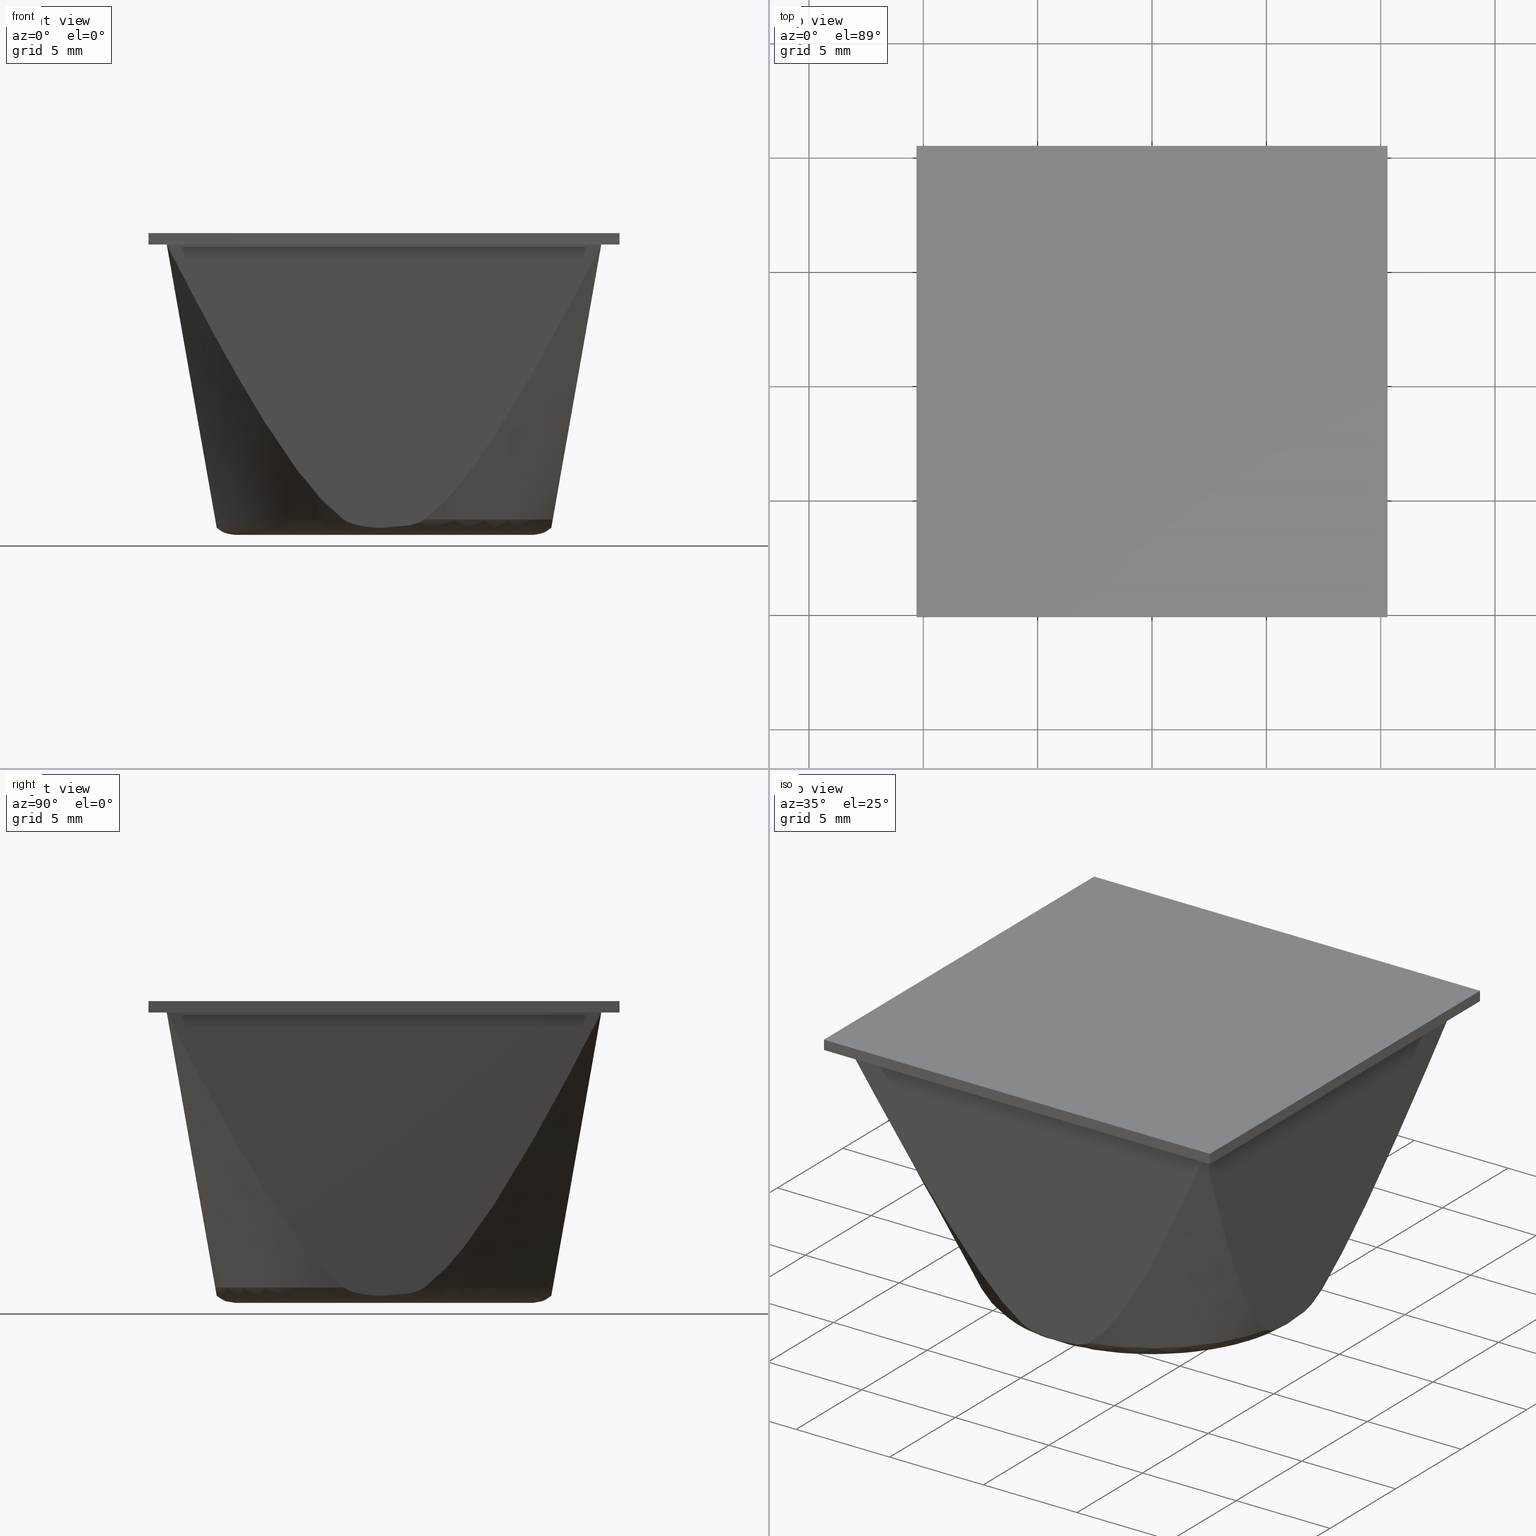
[diagram: canonical four-view strip — front | top / right | iso, engineering-drawing reading convention]
A machine part, canonical four-view strip (front | top / right | iso — engineering-drawing reading convention). The complete STEP part file that produces these views, byte-faithful:
ISO-10303-21;
HEADER;
/****************************************************************
 * Generated by software with PDE/Lib inside                    *
 * PDElib Version 4.4.1-0003, patched  Thursday August 19 11:58 *
 * International Technegroup Inc. (www.iti-oh.com)              *
 ****************************************************************/
FILE_DESCRIPTION((''),'2;1');
FILE_NAME('','2005-12-14T15:43:38',(''),(''),'','CADfix','');
FILE_SCHEMA(('AUTOMOTIVE_DESIGN'));
ENDSEC;
DATA;
#5=APPLICATION_CONTEXT('automotive design');
#6=APPLICATION_PROTOCOL_DEFINITION('Draft International Standard','automotive_design',1998,#5);
#7=PRODUCT_CONTEXT('None',#5,'mechanical');
#8=PRODUCT('rubber foot','','None',(#7));
#9=PRODUCT_RELATED_PRODUCT_CATEGORY('part','description',(#8));
#10=PRODUCT_DEFINITION_FORMATION('None','None',#8);
#11=PRODUCT_DEFINITION_CONTEXT('part definition',#5,'design');
#12=PRODUCT_DEFINITION('None','None',#10,#11);
#18=(NAMED_UNIT(*)PLANE_ANGLE_UNIT()SI_UNIT($,.RADIAN.));
#19=DIMENSIONAL_EXPONENTS(0.0,0.0,0.0,0.0,0.0,0.0,0.0);
#20=PLANE_ANGLE_MEASURE_WITH_UNIT(PLANE_ANGLE_MEASURE(0.017453292500000),#18);
#24=(CONVERSION_BASED_UNIT('DEGREE',#20)NAMED_UNIT(#19)PLANE_ANGLE_UNIT());
#28=(NAMED_UNIT(*)SI_UNIT($,.STERADIAN.)SOLID_ANGLE_UNIT());
#32=(LENGTH_UNIT()NAMED_UNIT(*)SI_UNIT(.MILLI.,.METRE.));
#34=UNCERTAINTY_MEASURE_WITH_UNIT(LENGTH_MEASURE(0.001000000000000),#32,'DISTANCE_ACCURACY_VALUE','');
#36=(GEOMETRIC_REPRESENTATION_CONTEXT(3)GLOBAL_UNCERTAINTY_ASSIGNED_CONTEXT((#34))GLOBAL_UNIT_ASSIGNED_CONTEXT((#24,#28,#32))REPRESENTATION_CONTEXT('None','None'));
#37=AXIS2_PLACEMENT_3D('',#38,#39,#40);
#38=CARTESIAN_POINT('',(0.0,0.0,0.0));
#39=DIRECTION('',(0.0,0.0,1.0));
#40=DIRECTION('',(1.0,0.0,0.0));
#41=ADVANCED_BREP_SHAPE_REPRESENTATION('',(#37,#943),#36);
#42=PRODUCT_DEFINITION_SHAPE('','',#12);
#43=SHAPE_DEFINITION_REPRESENTATION(#42,#41);
#44=CARTESIAN_POINT('',(3.328638617341546,6.848975217575174,0.732652266162198));
#45=CARTESIAN_POINT('',(10.177613834916718,3.520336600233628,0.732652266162198));
#46=CARTESIAN_POINT('',(6.848975217575174,-3.328638617341545,0.732652266162198));
#47=CARTESIAN_POINT('',(3.520336600233628,-10.177613834916718,0.732652266162198));
#48=CARTESIAN_POINT('',(-3.328638617341545,-6.848975217575174,0.732652266162198));
#49=CARTESIAN_POINT('',(-10.177613834916716,-3.520336600233634,0.732652266162198));
#50=CARTESIAN_POINT('',(-6.848975217575174,3.328638617341549,0.732652266162198));
#51=CARTESIAN_POINT('',(3.185337349119502,6.554119888556691,-0.042657869509506));
#52=CARTESIAN_POINT('',(9.739457237676191,3.368782539437189,-0.042657869509506));
#53=CARTESIAN_POINT('',(6.554119888556691,-3.185337349119502,-0.042657869509506));
#54=CARTESIAN_POINT('',(3.368782539437189,-9.739457237676191,-0.042657869509506));
#55=CARTESIAN_POINT('',(-3.185337349119502,-6.554119888556691,-0.042657869509506));
#56=CARTESIAN_POINT('',(-9.739457237676190,-3.368782539437193,-0.042657869509506));
#57=CARTESIAN_POINT('',(-6.554119888556690,3.185337349119503,-0.042657869509506));
#58=CARTESIAN_POINT('',(2.817895786019126,5.798075616742207,0.001664605182020));
#59=CARTESIAN_POINT('',(8.615971402761332,2.980179830723081,0.001664605182020));
#60=CARTESIAN_POINT('',(5.798075616742207,-2.817895786019126,0.001664605182020));
#61=CARTESIAN_POINT('',(2.980179830723081,-8.615971402761330,0.001664605182020));
#62=CARTESIAN_POINT('',(-2.817895786019125,-5.798075616742208,0.001664605182020));
#63=CARTESIAN_POINT('',(-8.615971402761330,-2.980179830723086,0.001664605182020));
#64=CARTESIAN_POINT('',(-5.798075616742206,2.817895786019129,0.001664605182020));
#72=(BOUNDED_SURFACE()B_SPLINE_SURFACE(2,2,((#44,#51,#58),(#45,#52,#59),(#46,#53,#60),(#47,#54,#61),(#48,#55,#62),(#49,#56,#63),(#50,#57,#64)),.UNSPECIFIED.,.F.,.F.,.U.)B_SPLINE_SURFACE_WITH_KNOTS((3,2,2,3),(3,3),(0.0,12.616952896533130,25.233905793066249,37.850858689599377),(0.0,1.515679160083022),.UNSPECIFIED.)GEOMETRIC_REPRESENTATION_ITEM()RATIONAL_B_SPLINE_SURFACE(((0.923235105304038,0.754360088458196,0.919674783884423),(0.652825803589962,0.533413134005274,0.650308276170948),(0.923235105304038,0.754360088458196,0.919674783884423),(0.652825803589962,0.533413134005274,0.650308276170948),(0.923235105304038,0.754360088458196,0.919674783884423),(0.652825803589962,0.533413134005274,0.650308276170948),(0.923235105304038,0.754360088458196,0.919674783884423)))REPRESENTATION_ITEM('')SURFACE());
#73=CARTESIAN_POINT('',(2.845514729197831,5.854904091922935,2.605872E-016));
#74=VERTEX_POINT('',#73);
#75=CARTESIAN_POINT('',(6.509750839372390,0.0,0.0));
#76=VERTEX_POINT('',#75);
#77=CARTESIAN_POINT('',(2.845514729197830,5.854904091922935,2.605872E-016));
#78=CARTESIAN_POINT('',(6.509750839372390,4.074065727412910,0.0));
#79=CARTESIAN_POINT('',(6.509750839372390,0.0,0.0));
#87=(BOUNDED_CURVE()B_SPLINE_CURVE(2,(#77,#78,#79),.UNSPECIFIED.,.F.,.U.)B_SPLINE_CURVE_WITH_KNOTS((3,3),(0.324283295448741,0.500000000000000),.UNSPECIFIED.)CURVE()GEOMETRIC_REPRESENTATION_ITEM()RATIONAL_B_SPLINE_CURVE((0.877661399759537,0.794135075218757,1.0))REPRESENTATION_ITEM(''));
#88=EDGE_CURVE('',#74,#76,#87,.T.);
#89=ORIENTED_EDGE('',*,*,#88,.F.);
#90=CARTESIAN_POINT('',(3.317256907468267,6.825556319390302,0.675315743457834));
#91=VERTEX_POINT('',#90);
#92=CARTESIAN_POINT('',(3.317256907468267,6.825556319390302,0.675315743457834));
#93=CARTESIAN_POINT('',(3.173743279965361,6.530264041937033,8.639886E-010));
#94=CARTESIAN_POINT('',(2.845514729197831,5.854904091922935,2.605872E-016));
#102=(BOUNDED_CURVE()B_SPLINE_CURVE(2,(#92,#93,#94),.UNSPECIFIED.,.F.,.U.)B_SPLINE_CURVE_WITH_KNOTS((3,3),(-1.660356673770125,-0.354940080941388),.UNSPECIFIED.)CURVE()GEOMETRIC_REPRESENTATION_ITEM()RATIONAL_B_SPLINE_CURVE((0.908585990121206,0.768847520690984,0.905349034737030))REPRESENTATION_ITEM(''));
#103=EDGE_CURVE('',#91,#74,#102,.T.);
#104=ORIENTED_EDGE('',*,*,#103,.F.);
#105=CARTESIAN_POINT('',(7.379723671231931,1.769771452936485,0.675315743465285));
#106=VERTEX_POINT('',#105);
#107=CARTESIAN_POINT('',(7.379723671231935,1.769771452936486,0.675315743465285));
#108=CARTESIAN_POINT('',(6.543264853436612,5.257699189284913,0.675315743465285));
#109=CARTESIAN_POINT('',(3.317256907468268,6.825556319390302,0.675315743457834));
#117=(BOUNDED_CURVE()B_SPLINE_CURVE(2,(#107,#108,#109),.UNSPECIFIED.,.F.,.U.)B_SPLINE_CURVE_WITH_KNOTS((3,3),(0.0,0.797806636239092),.UNSPECIFIED.)CURVE()GEOMETRIC_REPRESENTATION_ITEM()RATIONAL_B_SPLINE_CURVE((1.0,0.882331522374842,0.952416429400688))REPRESENTATION_ITEM(''));
#118=EDGE_CURVE('',#106,#91,#117,.T.);
#119=ORIENTED_EDGE('',*,*,#118,.F.);
#120=CARTESIAN_POINT('',(7.379723671228410,-1.769771452951155,0.675315743465285));
#121=VERTEX_POINT('',#120);
#122=CARTESIAN_POINT('',(7.379723671231925,1.769771452936486,0.675315743465283));
#123=CARTESIAN_POINT('',(7.375629430709468,1.738436735764247,0.652096152280455));
#124=CARTESIAN_POINT('',(7.371991308677013,1.705979005489993,0.631463337522553));
#125=CARTESIAN_POINT('',(7.365332075128291,1.639544398252725,0.593696948430993));
#126=CARTESIAN_POINT('',(7.362314963490738,1.605557673155305,0.576586058536091));
#127=CARTESIAN_POINT('',(7.353962767605288,1.501876141888868,0.529218403193918));
#128=CARTESIAN_POINT('',(7.349315759435334,1.430487217924478,0.502863910987853));
#129=CARTESIAN_POINT('',(7.341218656835542,1.284762438789015,0.456942961518095));
#130=CARTESIAN_POINT('',(7.337767935953684,1.210091445864442,0.437372951468573));
#131=CARTESIAN_POINT('',(7.331827493168500,1.060288057306915,0.403683027251325));
#132=CARTESIAN_POINT('',(7.329335543574211,0.985180736689516,0.389550479220666));
#133=CARTESIAN_POINT('',(7.322934124792561,0.759396838532355,0.353246230289171));
#134=CARTESIAN_POINT('',(7.320078166466407,0.608267318582288,0.337049286213593));
#135=CARTESIAN_POINT('',(7.316320540333664,0.305168058527841,0.315738730043519));
#136=CARTESIAN_POINT('',(7.315432653400795,0.153192393527585,0.310703273165357));
#137=CARTESIAN_POINT('',(7.315427685793519,-0.075341570261567,0.310675100465312));
#138=CARTESIAN_POINT('',(7.315650985814355,-0.151616274861943,0.311941497778075));
#139=CARTESIAN_POINT('',(7.316565811595469,-0.304366991237397,0.317129732452182));
#140=CARTESIAN_POINT('',(7.317258697513537,-0.380945851801463,0.321059283651501));
#141=CARTESIAN_POINT('',(7.320101967547486,-0.609978492193262,0.337184268848172));
#142=CARTESIAN_POINT('',(7.322986626539809,-0.761859978045776,0.353543982485421));
#143=CARTESIAN_POINT('',(7.329423273122998,-0.987961156143045,0.390048018201717));
#144=CARTESIAN_POINT('',(7.331925569069764,-1.063037182655416,0.404239243311384));
#145=CARTESIAN_POINT('',(7.337871640038619,-1.212421180795681,0.437961086543482));
#146=CARTESIAN_POINT('',(7.341318171493754,-1.286747027876910,0.457507337174071));
#147=CARTESIAN_POINT('',(7.349405142567666,-1.431897671743318,0.503370827906922));
#148=CARTESIAN_POINT('',(7.354044144252980,-1.502998937716501,0.529679913083488));
#149=CARTESIAN_POINT('',(7.362375557493325,-1.606252528798740,0.576929704191649));
#150=CARTESIAN_POINT('',(7.365384253671762,-1.640097225690853,0.593992867647593));
#151=CARTESIAN_POINT('',(7.372021885526973,-1.706251366851468,0.631636747450936));
#152=CARTESIAN_POINT('',(7.375646908144014,-1.738570496951393,0.652195271734433));
#153=CARTESIAN_POINT('',(7.379723671228410,-1.769771452951155,0.675315743465285));
#154=B_SPLINE_CURVE_WITH_KNOTS('',3,(#122,#123,#124,#125,#126,#127,#128,#129,#130,#131,#132,#133,#134,#135,#136,#137,#138,#139,#140,#141,#142,#143,#144,#145,#146,#147,#148,#149,#150,#151,#152,#153),.UNSPECIFIED.,.F.,.U.,(4,2,2,2,2,2,2,2,2,2,2,2,2,2,2,4),(0.0,0.031250000000000,0.062500000000000,0.125000000000000,0.187500000000000,0.250000000000000,0.375000000000000,0.500000000000000,0.562500000000000,0.625000000000000,0.750000000000000,0.812500000000000,0.875000000000000,0.937500000000000,0.968750000000000,1.0),.UNSPECIFIED.);
#155=EDGE_CURVE('',#106,#121,#154,.T.);
#156=ORIENTED_EDGE('',*,*,#155,.T.);
#157=CARTESIAN_POINT('',(1.769771452936490,-7.379723671231931,0.675315743465284));
#158=VERTEX_POINT('',#157);
#159=CARTESIAN_POINT('',(1.769771452936489,-7.379723671231934,0.675315743465285));
#160=CARTESIAN_POINT('',(6.294600049258126,-6.294600049270636,0.675315743465285));
#161=CARTESIAN_POINT('',(7.379723671228417,-1.769771452951157,0.675315743465285));
#169=(BOUNDED_CURVE()B_SPLINE_CURVE(2,(#159,#160,#161),.UNSPECIFIED.,.F.,.U.)CURVE()GEOMETRIC_REPRESENTATION_ITEM()QUASI_UNIFORM_CURVE()RATIONAL_B_SPLINE_CURVE((1.0,0.852510029021742,1.0))REPRESENTATION_ITEM(''));
#170=EDGE_CURVE('',#158,#121,#169,.T.);
#171=ORIENTED_EDGE('',*,*,#170,.F.);
#172=CARTESIAN_POINT('',(-1.769771452951425,-7.379723671228351,0.675315743465285));
#173=VERTEX_POINT('',#172);
#174=CARTESIAN_POINT('',(1.769771452936490,-7.379723671231926,0.675315743465286));
#175=CARTESIAN_POINT('',(1.738436735764249,-7.375629430709468,0.652096152280456));
#176=CARTESIAN_POINT('',(1.705979005489993,-7.371991308677012,0.631463337522551));
#177=CARTESIAN_POINT('',(1.639544398252721,-7.365332075128294,0.593696948430989));
#178=CARTESIAN_POINT('',(1.605557673155297,-7.362314963490737,0.576586058536086));
#179=CARTESIAN_POINT('',(1.501876141888853,-7.353962767605284,0.529218403193912));
#180=CARTESIAN_POINT('',(1.430487217924457,-7.349315759435334,0.502863910987847));
#181=CARTESIAN_POINT('',(1.284762438788984,-7.341218656835541,0.456942961518088));
#182=CARTESIAN_POINT('',(1.210091445864405,-7.337767935953681,0.437372951468564));
#183=CARTESIAN_POINT('',(1.060288057306869,-7.331827493168500,0.403683027251316));
#184=CARTESIAN_POINT('',(0.985180736689464,-7.329335543574207,0.389550479220656));
#185=CARTESIAN_POINT('',(0.759396838532287,-7.322934124792560,0.353246230289162));
#186=CARTESIAN_POINT('',(0.608267318582211,-7.320078166466406,0.337049286213586));
#187=CARTESIAN_POINT('',(0.305168058527741,-7.316320540333668,0.315738730043515));
#188=CARTESIAN_POINT('',(0.153192393527476,-7.315432653400794,0.310703273165355));
#189=CARTESIAN_POINT('',(-0.075341570261693,-7.315427685793518,0.310675100465314));
#190=CARTESIAN_POINT('',(-0.151616274862074,-7.315650985814360,0.311941497778077));
#191=CARTESIAN_POINT('',(-0.304366991237538,-7.316565811595470,0.317129732452188));
#192=CARTESIAN_POINT('',(-0.380945851801610,-7.317258697513539,0.321059283651508));
#193=CARTESIAN_POINT('',(-0.609978492193424,-7.320101967547485,0.337184268848187));
#194=CARTESIAN_POINT('',(-0.761859978045947,-7.322986626539812,0.353543982485441));
#195=CARTESIAN_POINT('',(-0.987961156143230,-7.329423273123003,0.390048018201751));
#196=CARTESIAN_POINT('',(-1.063037182655606,-7.331925569069769,0.404239243311423));
#197=CARTESIAN_POINT('',(-1.212421180795880,-7.337871640038626,0.437961086543533));
#198=CARTESIAN_POINT('',(-1.286747027877113,-7.341318171493763,0.457507337174127));
#199=CARTESIAN_POINT('',(-1.431897671743524,-7.349405142567677,0.503370827906994));
#200=CARTESIAN_POINT('',(-1.502998937716709,-7.354044144252993,0.529679913083570));
#201=CARTESIAN_POINT('',(-1.606252528798948,-7.362375557493341,0.576929704191751));
#202=CARTESIAN_POINT('',(-1.640097225691059,-7.365384253671780,0.593992867647703));
#203=CARTESIAN_POINT('',(-1.706251366851671,-7.372021885526991,0.631636747451063));
#204=CARTESIAN_POINT('',(-1.738570496951596,-7.375646908144034,0.652195271734568));
#205=CARTESIAN_POINT('',(-1.769771452951425,-7.379723671228351,0.675315743465285));
#206=B_SPLINE_CURVE_WITH_KNOTS('',3,(#174,#175,#176,#177,#178,#179,#180,#181,#182,#183,#184,#185,#186,#187,#188,#189,#190,#191,#192,#193,#194,#195,#196,#197,#198,#199,#200,#201,#202,#203,#204,#205),.UNSPECIFIED.,.F.,.U.,(4,2,2,2,2,2,2,2,2,2,2,2,2,2,2,4),(0.0,0.031250000000000,0.062500000000000,0.125000000000000,0.187500000000000,0.250000000000000,0.375000000000000,0.500000000000000,0.562500000000000,0.625000000000000,0.750000000000000,0.812500000000000,0.875000000000000,0.937500000000000,0.968750000000000,1.0),.UNSPECIFIED.);
#207=EDGE_CURVE('',#158,#173,#206,.T.);
#208=ORIENTED_EDGE('',*,*,#207,.T.);
#209=CARTESIAN_POINT('',(-7.379723671231931,-1.769771452936490,0.675315743465284));
#210=VERTEX_POINT('',#209);
#211=CARTESIAN_POINT('',(-7.379723671231934,-1.769771452936490,0.675315743465285));
#212=CARTESIAN_POINT('',(-6.294600049270682,-6.294600049257940,0.675315743465285));
#213=CARTESIAN_POINT('',(-1.769771452951428,-7.379723671228352,0.675315743465285));
#221=(BOUNDED_CURVE()B_SPLINE_CURVE(2,(#211,#212,#213),.UNSPECIFIED.,.F.,.U.)CURVE()GEOMETRIC_REPRESENTATION_ITEM()QUASI_UNIFORM_CURVE()RATIONAL_B_SPLINE_CURVE((1.0,0.852510029021752,1.0))REPRESENTATION_ITEM(''));
#222=EDGE_CURVE('',#210,#173,#221,.T.);
#223=ORIENTED_EDGE('',*,*,#222,.F.);
#224=CARTESIAN_POINT('',(-7.379723671228320,1.769771452951565,0.675315743465285));
#225=VERTEX_POINT('',#224);
#226=CARTESIAN_POINT('',(-7.379723671231925,-1.769771452936491,0.675315743465284));
#227=CARTESIAN_POINT('',(-7.375629430709466,-1.738436735764247,0.652096152280453));
#228=CARTESIAN_POINT('',(-7.371991308677011,-1.705979005489990,0.631463337522549));
#229=CARTESIAN_POINT('',(-7.365332075128289,-1.639544398252716,0.593696948430986));
#230=CARTESIAN_POINT('',(-7.362314963490734,-1.605557673155290,0.576586058536085));
#231=CARTESIAN_POINT('',(-7.353962767605283,-1.501876141888843,0.529218403193910));
#232=CARTESIAN_POINT('',(-7.349315759435333,-1.430487217924446,0.502863910987839));
#233=CARTESIAN_POINT('',(-7.341218656835538,-1.284762438788967,0.456942961518079));
#234=CARTESIAN_POINT('',(-7.337767935953681,-1.210091445864384,0.437372951468558));
#235=CARTESIAN_POINT('',(-7.331827493168500,-1.060288057306842,0.403683027251311));
#236=CARTESIAN_POINT('',(-7.329335543574207,-0.985180736689435,0.389550479220651));
#237=CARTESIAN_POINT('',(-7.322934124792560,-0.759396838532250,0.353246230289158));
#238=CARTESIAN_POINT('',(-7.320078166466582,-0.608267318582091,0.337049286214593));
#239=CARTESIAN_POINT('',(-7.316320540333839,-0.305168058527614,0.315738730044494));
#240=CARTESIAN_POINT('',(-7.315432653400795,-0.153192393527416,0.310703273165354));
#241=CARTESIAN_POINT('',(-7.315427685793518,0.075341570261760,0.310675100465314));
#242=CARTESIAN_POINT('',(-7.315650985814358,0.151616274862143,0.311941497778078));
#243=CARTESIAN_POINT('',(-7.316565811595473,0.304366991237613,0.317129732452191));
#244=CARTESIAN_POINT('',(-7.317258697513540,0.380945851801687,0.321059283651513));
#245=CARTESIAN_POINT('',(-7.320101967547485,0.609978492193509,0.337184268848195));
#246=CARTESIAN_POINT('',(-7.322986626539813,0.761859978046038,0.353543982485452));
#247=CARTESIAN_POINT('',(-7.329423273123006,0.987961156143327,0.390048018201768));
#248=CARTESIAN_POINT('',(-7.331925569069772,1.063037182655705,0.404239243311444));
#249=CARTESIAN_POINT('',(-7.337871640038632,1.212421180795983,0.437961086543559));
#250=CARTESIAN_POINT('',(-7.341318171493768,1.286747027877217,0.457507337174156));
#251=CARTESIAN_POINT('',(-7.349405142567685,1.431897671743632,0.503370827907031));
#252=CARTESIAN_POINT('',(-7.354044144252999,1.502998937716817,0.529679913083611));
#253=CARTESIAN_POINT('',(-7.362375557493351,1.606252528799057,0.576929704191801));
#254=CARTESIAN_POINT('',(-7.365384253671792,1.640097225691166,0.593992867647761));
#255=CARTESIAN_POINT('',(-7.372021885527006,1.706251366851778,0.631636747451130));
#256=CARTESIAN_POINT('',(-7.375646908144048,1.738570496951702,0.652195271734637));
#257=CARTESIAN_POINT('',(-7.379723671228320,1.769771452951565,0.675315743465285));
#258=B_SPLINE_CURVE_WITH_KNOTS('',3,(#226,#227,#228,#229,#230,#231,#232,#233,#234,#235,#236,#237,#238,#239,#240,#241,#242,#243,#244,#245,#246,#247,#248,#249,#250,#251,#252,#253,#254,#255,#256,#257),.UNSPECIFIED.,.F.,.U.,(4,2,2,2,2,2,2,2,2,2,2,2,2,2,2,4),(0.0,0.031250000000000,0.062500000000000,0.125000000000000,0.187500000000000,0.250000000000000,0.375000000000000,0.500000000000000,0.562500000000000,0.625000000000000,0.750000000000000,0.812500000000000,0.875000000000000,0.937500000000000,0.968750000000000,1.0),.UNSPECIFIED.);
#259=EDGE_CURVE('',#210,#225,#258,.T.);
#260=ORIENTED_EDGE('',*,*,#259,.T.);
#261=CARTESIAN_POINT('',(-6.825556319391236,3.317256907468510,0.675315743459781));
#262=VERTEX_POINT('',#261);
#263=CARTESIAN_POINT('',(-6.825556319391236,3.317256907468510,0.675315743459781));
#264=CARTESIAN_POINT('',(-7.186929471953428,2.573698939572269,0.675315743465285));
#265=CARTESIAN_POINT('',(-7.379723671228319,1.769771452951567,0.675315743465285));
#273=(BOUNDED_CURVE()B_SPLINE_CURVE(2,(#263,#264,#265),.UNSPECIFIED.,.F.,.U.)B_SPLINE_CURVE_WITH_KNOTS((3,3),(0.797806636239151,1.0),.UNSPECIFIED.)CURVE()GEOMETRIC_REPRESENTATION_ITEM()RATIONAL_B_SPLINE_CURVE((0.952416429400700,0.970178506646919,1.0))REPRESENTATION_ITEM(''));
#274=EDGE_CURVE('',#262,#225,#273,.T.);
#275=ORIENTED_EDGE('',*,*,#274,.F.);
#276=CARTESIAN_POINT('',(-5.854904091930713,2.845514729201897,2.759159E-016));
#277=VERTEX_POINT('',#276);
#278=CARTESIAN_POINT('',(-6.825556319391236,3.317256907468510,0.675315743459781));
#279=CARTESIAN_POINT('',(-6.530264041944542,3.173743279969011,8.749683E-010));
#280=CARTESIAN_POINT('',(-5.854904091930713,2.845514729201897,2.759159E-016));
#288=(BOUNDED_CURVE()B_SPLINE_CURVE(2,(#278,#279,#280),.UNSPECIFIED.,.F.,.U.)B_SPLINE_CURVE_WITH_KNOTS((3,3),(-1.660356673774574,-0.354940080959348),.UNSPECIFIED.)CURVE()GEOMETRIC_REPRESENTATION_ITEM()RATIONAL_B_SPLINE_CURVE((0.908585990122158,0.768847520692442,0.905349034733274))REPRESENTATION_ITEM(''));
#289=EDGE_CURVE('',#262,#277,#288,.T.);
#290=ORIENTED_EDGE('',*,*,#289,.T.);
#291=CARTESIAN_POINT('',(-6.509750839372390,0.0,0.0));
#292=VERTEX_POINT('',#291);
#293=CARTESIAN_POINT('',(-6.509750839372390,0.0,0.0));
#294=CARTESIAN_POINT('',(-6.509750839372389,1.498108277101772,0.0));
#295=CARTESIAN_POINT('',(-5.854904091930713,2.845514729201897,2.759159E-016));
#303=(BOUNDED_CURVE()B_SPLINE_CURVE(2,(#293,#294,#295),.UNSPECIFIED.,.F.,.U.)B_SPLINE_CURVE_WITH_KNOTS((3,3),(0.0,0.074283295448753),.UNSPECIFIED.)CURVE()GEOMETRIC_REPRESENTATION_ITEM()RATIONAL_B_SPLINE_CURVE((1.0,0.912971705967776,0.877661399759525))REPRESENTATION_ITEM(''));
#304=EDGE_CURVE('',#292,#277,#303,.T.);
#305=ORIENTED_EDGE('',*,*,#304,.F.);
#306=CARTESIAN_POINT('',(6.509750839372390,0.0,0.0));
#307=CARTESIAN_POINT('',(6.509750839372389,-6.509750839372389,0.0));
#308=CARTESIAN_POINT('',(0.0,-6.509750839372390,0.0));
#309=CARTESIAN_POINT('',(-6.509750839372389,-6.509750839372389,0.0));
#310=CARTESIAN_POINT('',(-6.509750839372390,0.0,0.0));
#318=(BOUNDED_CURVE()B_SPLINE_CURVE(2,(#306,#307,#308,#309,#310),.UNSPECIFIED.,.F.,.U.)B_SPLINE_CURVE_WITH_KNOTS((3,2,3),(0.500000000000000,0.750000000000000,1.0),.UNSPECIFIED.)CURVE()GEOMETRIC_REPRESENTATION_ITEM()RATIONAL_B_SPLINE_CURVE((1.0,0.707106781186547,1.0,0.707106781186547,1.0))REPRESENTATION_ITEM(''));
#319=EDGE_CURVE('',#76,#292,#318,.T.);
#320=ORIENTED_EDGE('',*,*,#319,.F.);
#321=EDGE_LOOP('',(#89,#104,#119,#156,#171,#208,#223,#260,#275,#290,#305,#320));
#322=FACE_OUTER_BOUND('',#321,.T.);
#323=ADVANCED_FACE('',(#322),#72,.T.);
#324=CARTESIAN_POINT('',(-6.848975214078248,3.328638615642021,0.732652256967169));
#325=CARTESIAN_POINT('',(-3.520336598436226,10.177613829720267,0.732652256967169));
#326=CARTESIAN_POINT('',(3.328638615642021,6.848975214078248,0.732652256967169));
#327=CARTESIAN_POINT('',(-6.554119936917290,3.185337372623013,-0.042657724365733));
#328=CARTESIAN_POINT('',(-3.368782564294277,9.739457309540303,-0.042657724365733));
#329=CARTESIAN_POINT('',(3.185337372623013,6.554119936917290,-0.042657724365733));
#330=CARTESIAN_POINT('',(-5.798075805948697,2.817895877974494,0.001664594089963));
#331=CARTESIAN_POINT('',(-2.980179927974203,8.615971683923188,0.001664594089963));
#332=CARTESIAN_POINT('',(2.817895877974494,5.798075805948698,0.001664594089963));
#340=(BOUNDED_SURFACE()B_SPLINE_SURFACE(2,2,((#324,#327,#330),(#325,#328,#331),(#326,#329,#332)),.UNSPECIFIED.,.F.,.F.,.U.)B_SPLINE_SURFACE_WITH_KNOTS((3,3),(3,3),(0.0,12.616952890091200),(0.0,1.515678917397255),.UNSPECIFIED.)GEOMETRIC_REPRESENTATION_ITEM()RATIONAL_B_SPLINE_SURFACE(((0.923235102852850,0.754360115419963,0.919674733446666),(0.652825801856710,0.533413153070123,0.650308240506068),(0.923235102852850,0.754360115419963,0.919674733446666)))REPRESENTATION_ITEM('')SURFACE());
#341=CARTESIAN_POINT('',(-5.854904091930713,2.845514729201897,2.759159E-016));
#342=CARTESIAN_POINT('',(-4.074065727412553,6.509750839372390,0.0));
#343=CARTESIAN_POINT('',(0.0,6.509750839372390,0.0));
#344=CARTESIAN_POINT('',(1.498108277101505,6.509750839372390,0.0));
#345=CARTESIAN_POINT('',(2.845514729197830,5.854904091922935,2.605872E-016));
#353=(BOUNDED_CURVE()B_SPLINE_CURVE(2,(#341,#342,#343,#344,#345),.UNSPECIFIED.,.F.,.U.)B_SPLINE_CURVE_WITH_KNOTS((3,2,3),(0.074283295448753,0.250000000000000,0.324283295448741),.UNSPECIFIED.)CURVE()GEOMETRIC_REPRESENTATION_ITEM()RATIONAL_B_SPLINE_CURVE((0.877661399759525,0.794135075218771,1.0,0.912971705967790,0.877661399759537))REPRESENTATION_ITEM(''));
#354=EDGE_CURVE('',#277,#74,#353,.T.);
#355=ORIENTED_EDGE('',*,*,#354,.F.);
#356=ORIENTED_EDGE('',*,*,#289,.F.);
#357=CARTESIAN_POINT('',(-1.769771452936490,7.379723671231931,0.675315743465284));
#358=VERTEX_POINT('',#357);
#359=CARTESIAN_POINT('',(-1.769771452936489,7.379723671231934,0.675315743465285));
#360=CARTESIAN_POINT('',(-5.257699189285138,6.543264853436557,0.675315743465285));
#361=CARTESIAN_POINT('',(-6.825556319391236,3.317256907468510,0.675315743459781));
#369=(BOUNDED_CURVE()B_SPLINE_CURVE(2,(#359,#360,#361),.UNSPECIFIED.,.F.,.U.)B_SPLINE_CURVE_WITH_KNOTS((3,3),(0.0,0.797806636239151),.UNSPECIFIED.)CURVE()GEOMETRIC_REPRESENTATION_ITEM()RATIONAL_B_SPLINE_CURVE((1.0,0.882331522374838,0.952416429400700))REPRESENTATION_ITEM(''));
#370=EDGE_CURVE('',#358,#262,#369,.T.);
#371=ORIENTED_EDGE('',*,*,#370,.F.);
#372=CARTESIAN_POINT('',(1.769771452951430,7.379723671228351,0.675315743465285));
#373=VERTEX_POINT('',#372);
#374=CARTESIAN_POINT('',(-1.769771452936491,7.379723671231925,0.675315743465284));
#375=CARTESIAN_POINT('',(-1.738436735764249,7.375629430709468,0.652096152280454));
#376=CARTESIAN_POINT('',(-1.705979005489992,7.371991308677012,0.631463337522551));
#377=CARTESIAN_POINT('',(-1.639544398252720,7.365332075128290,0.593696948430989));
#378=CARTESIAN_POINT('',(-1.605557673155296,7.362314963490735,0.576586058536086));
#379=CARTESIAN_POINT('',(-1.501876141888853,7.353962767605285,0.529218403193912));
#380=CARTESIAN_POINT('',(-1.430487217924457,7.349315759435332,0.502863910987846));
#381=CARTESIAN_POINT('',(-1.284762438788983,7.341218656835538,0.456942961518087));
#382=CARTESIAN_POINT('',(-1.210091445864404,7.337767935953681,0.437372951468564));
#383=CARTESIAN_POINT('',(-1.060288057306868,7.331827493168503,0.403683027251316));
#384=CARTESIAN_POINT('',(-0.985180736689463,7.329335543574209,0.389550479220656));
#385=CARTESIAN_POINT('',(-0.759396838532285,7.322934124792560,0.353246230289162));
#386=CARTESIAN_POINT('',(-0.608267318582208,7.320078166466404,0.337049286213586));
#387=CARTESIAN_POINT('',(-0.305168058527739,7.316320540333668,0.315738730043515));
#388=CARTESIAN_POINT('',(-0.153192393527473,7.315432653400797,0.310703273165355));
#389=CARTESIAN_POINT('',(0.075341570261696,7.315427685793519,0.310675100465314));
#390=CARTESIAN_POINT('',(0.151616274862077,7.315650985814359,0.311941497778077));
#391=CARTESIAN_POINT('',(0.304366991237542,7.316565811595470,0.317129732452188));
#392=CARTESIAN_POINT('',(0.380945851801613,7.317258697513542,0.321059283651509));
#393=CARTESIAN_POINT('',(0.609978492193427,7.320101967547485,0.337184268848188));
#394=CARTESIAN_POINT('',(0.761859978045950,7.322986626539811,0.353543982485442));
#395=CARTESIAN_POINT('',(0.987961156143234,7.329423273123004,0.390048018201752));
#396=CARTESIAN_POINT('',(1.063037182655609,7.331925569069769,0.404239243311423));
#397=CARTESIAN_POINT('',(1.212421180795884,7.337871640038628,0.437961086543533));
#398=CARTESIAN_POINT('',(1.286747027877117,7.341318171493763,0.457507337174128));
#399=CARTESIAN_POINT('',(1.431897671743529,7.349405142567680,0.503370827906996));
#400=CARTESIAN_POINT('',(1.502998937716713,7.354044144252994,0.529679913083571));
#401=CARTESIAN_POINT('',(1.606252528798953,7.362375557493341,0.576929704191752));
#402=CARTESIAN_POINT('',(1.640097225691062,7.365384253671780,0.593992867647706));
#403=CARTESIAN_POINT('',(1.706251366851675,7.372021885526991,0.631636747451066));
#404=CARTESIAN_POINT('',(1.738570496951599,7.375646908144032,0.652195271734571));
#405=CARTESIAN_POINT('',(1.769771452951430,7.379723671228351,0.675315743465285));
#406=B_SPLINE_CURVE_WITH_KNOTS('',3,(#374,#375,#376,#377,#378,#379,#380,#381,#382,#383,#384,#385,#386,#387,#388,#389,#390,#391,#392,#393,#394,#395,#396,#397,#398,#399,#400,#401,#402,#403,#404,#405),.UNSPECIFIED.,.F.,.U.,(4,2,2,2,2,2,2,2,2,2,2,2,2,2,2,4),(0.0,0.031250000000000,0.062500000000000,0.125000000000000,0.187500000000000,0.250000000000000,0.375000000000000,0.500000000000000,0.562500000000000,0.625000000000000,0.750000000000000,0.812500000000000,0.875000000000000,0.937500000000000,0.968750000000000,1.0),.UNSPECIFIED.);
#407=EDGE_CURVE('',#358,#373,#406,.T.);
#408=ORIENTED_EDGE('',*,*,#407,.T.);
#409=CARTESIAN_POINT('',(3.317256907468268,6.825556319390302,0.675315743457834));
#410=CARTESIAN_POINT('',(2.573698939572392,7.186929471953415,0.675315743465285));
#411=CARTESIAN_POINT('',(1.769771452951429,7.379723671228352,0.675315743465285));
#419=(BOUNDED_CURVE()B_SPLINE_CURVE(2,(#409,#410,#411),.UNSPECIFIED.,.F.,.U.)B_SPLINE_CURVE_WITH_KNOTS((3,3),(0.797806636239092,1.0),.UNSPECIFIED.)CURVE()GEOMETRIC_REPRESENTATION_ITEM()RATIONAL_B_SPLINE_CURVE((0.952416429400688,0.970178506646909,1.0))REPRESENTATION_ITEM(''));
#420=EDGE_CURVE('',#91,#373,#419,.T.);
#421=ORIENTED_EDGE('',*,*,#420,.F.);
#422=ORIENTED_EDGE('',*,*,#103,.T.);
#423=EDGE_LOOP('',(#355,#356,#371,#408,#421,#422));
#424=FACE_OUTER_BOUND('',#423,.T.);
#425=ADVANCED_FACE('',(#424),#340,.T.);
#426=CARTESIAN_POINT('',(-11.328970153451269,11.328970153451269,12.699999999999999));
#427=CARTESIAN_POINT('',(11.328970521807969,11.328970153451269,12.699999999999999));
#428=CARTESIAN_POINT('',(-11.328970153451269,-11.328970521807969,12.699999999999999));
#429=CARTESIAN_POINT('',(11.328970521807969,-11.328970521807969,12.699999999999999));
#430=B_SPLINE_SURFACE_WITH_KNOTS('',1,1,((#426,#428),(#427,#429)),.UNSPECIFIED.,.F.,.F.,.U.,(2,2),(2,2),(0.0,22.657940675259240),(0.0,22.657940675259240),.UNSPECIFIED.);
#431=CARTESIAN_POINT('',(10.300000000000001,10.300000000000001,12.699999999999999));
#432=VERTEX_POINT('',#431);
#433=CARTESIAN_POINT('',(10.300000000000001,-10.300000000000001,12.699999999999999));
#434=VERTEX_POINT('',#433);
#435=CARTESIAN_POINT('',(10.300000000000001,10.300000000000001,12.699999999999999));
#436=CARTESIAN_POINT('',(10.300000000000001,-10.300000000000001,12.699999999999999));
#437=QUASI_UNIFORM_CURVE('',1,(#435,#436),.UNSPECIFIED.,.F.,.U.);
#438=EDGE_CURVE('',#432,#434,#437,.T.);
#439=ORIENTED_EDGE('',*,*,#438,.T.);
#440=CARTESIAN_POINT('',(-10.300000000000001,-10.300000000000001,12.699999999999999));
#441=VERTEX_POINT('',#440);
#442=CARTESIAN_POINT('',(10.300000000000001,-10.300000000000001,12.699999999999999));
#443=CARTESIAN_POINT('',(-10.300000000000001,-10.300000000000001,12.699999999999999));
#444=QUASI_UNIFORM_CURVE('',1,(#442,#443),.UNSPECIFIED.,.F.,.U.);
#445=EDGE_CURVE('',#434,#441,#444,.T.);
#446=ORIENTED_EDGE('',*,*,#445,.T.);
#447=CARTESIAN_POINT('',(-10.300000000000001,10.300000000000001,12.699999999999999));
#448=VERTEX_POINT('',#447);
#449=CARTESIAN_POINT('',(-10.300000000000001,-10.300000000000001,12.699999999999999));
#450=CARTESIAN_POINT('',(-10.300000000000001,10.300000000000001,12.699999999999999));
#451=QUASI_UNIFORM_CURVE('',1,(#449,#450),.UNSPECIFIED.,.F.,.U.);
#452=EDGE_CURVE('',#441,#448,#451,.T.);
#453=ORIENTED_EDGE('',*,*,#452,.T.);
#454=CARTESIAN_POINT('',(-10.300000000000001,10.300000000000001,12.699999999999999));
#455=CARTESIAN_POINT('',(10.300000000000001,10.300000000000001,12.699999999999999));
#456=QUASI_UNIFORM_CURVE('',1,(#454,#455),.UNSPECIFIED.,.F.,.U.);
#457=EDGE_CURVE('',#448,#432,#456,.T.);
#458=ORIENTED_EDGE('',*,*,#457,.T.);
#459=EDGE_LOOP('',(#439,#446,#453,#458));
#460=FACE_OUTER_BOUND('',#459,.T.);
#461=CARTESIAN_POINT('',(-9.499999999999790,-9.499999999999721,12.699999999998839));
#462=VERTEX_POINT('',#461);
#463=CARTESIAN_POINT('',(-9.499999999999730,9.500000000000000,12.699999999999999));
#464=VERTEX_POINT('',#463);
#465=CARTESIAN_POINT('',(-9.499999999999790,-9.499999999999721,12.699999999998839));
#466=CARTESIAN_POINT('',(-9.499999999999730,9.500000000000000,12.699999999999999));
#467=QUASI_UNIFORM_CURVE('',1,(#465,#466),.UNSPECIFIED.,.F.,.U.);
#468=EDGE_CURVE('',#462,#464,#467,.T.);
#469=ORIENTED_EDGE('',*,*,#468,.F.);
#470=CARTESIAN_POINT('',(9.499999999999730,-9.500000000000000,12.699999999999999));
#471=VERTEX_POINT('',#470);
#472=CARTESIAN_POINT('',(9.499999999999730,-9.500000000000000,12.699999999999999));
#473=CARTESIAN_POINT('',(-9.499999999999790,-9.499999999999721,12.699999999998839));
#474=QUASI_UNIFORM_CURVE('',1,(#472,#473),.UNSPECIFIED.,.F.,.U.);
#475=EDGE_CURVE('',#471,#462,#474,.T.);
#476=ORIENTED_EDGE('',*,*,#475,.F.);
#477=CARTESIAN_POINT('',(9.500000000000000,9.499999999999730,12.699999999999999));
#478=VERTEX_POINT('',#477);
#479=CARTESIAN_POINT('',(9.500000000000000,9.499999999999730,12.699999999999999));
#480=CARTESIAN_POINT('',(9.499999999999730,-9.500000000000000,12.699999999999999));
#481=QUASI_UNIFORM_CURVE('',1,(#479,#480),.UNSPECIFIED.,.F.,.U.);
#482=EDGE_CURVE('',#478,#471,#481,.T.);
#483=ORIENTED_EDGE('',*,*,#482,.F.);
#484=CARTESIAN_POINT('',(-9.499999999999730,9.500000000000000,12.699999999999999));
#485=CARTESIAN_POINT('',(9.500000000000000,9.499999999999730,12.699999999999999));
#486=QUASI_UNIFORM_CURVE('',1,(#484,#485),.UNSPECIFIED.,.F.,.U.);
#487=EDGE_CURVE('',#464,#478,#486,.T.);
#488=ORIENTED_EDGE('',*,*,#487,.F.);
#489=EDGE_LOOP('',(#469,#476,#483,#488));
#490=FACE_BOUND('',#489,.T.);
#491=ADVANCED_FACE('',(#460,#490),#430,.T.);
#492=CARTESIAN_POINT('',(-11.328970153451269,11.328970153451269,13.199999999999999));
#493=CARTESIAN_POINT('',(11.328970521807969,11.328970153451269,13.199999999999999));
#494=CARTESIAN_POINT('',(-11.328970153451269,-11.328970521807969,13.199999999999999));
#495=CARTESIAN_POINT('',(11.328970521807969,-11.328970521807969,13.199999999999999));
#496=B_SPLINE_SURFACE_WITH_KNOTS('',1,1,((#492,#494),(#493,#495)),.UNSPECIFIED.,.F.,.F.,.U.,(2,2),(2,2),(0.0,22.657940675259240),(0.0,22.657940675259240),.UNSPECIFIED.);
#497=CARTESIAN_POINT('',(10.300000000000001,10.300000000000001,13.199999999999999));
#498=VERTEX_POINT('',#497);
#499=CARTESIAN_POINT('',(10.300000000000001,-10.300000000000001,13.199999999999999));
#500=VERTEX_POINT('',#499);
#501=CARTESIAN_POINT('',(10.300000000000001,10.300000000000001,13.199999999999999));
#502=CARTESIAN_POINT('',(10.300000000000001,-10.300000000000001,13.199999999999999));
#503=QUASI_UNIFORM_CURVE('',1,(#501,#502),.UNSPECIFIED.,.F.,.U.);
#504=EDGE_CURVE('',#498,#500,#503,.T.);
#505=ORIENTED_EDGE('',*,*,#504,.F.);
#506=CARTESIAN_POINT('',(-10.300000000000001,10.300000000000001,13.199999999999999));
#507=VERTEX_POINT('',#506);
#508=CARTESIAN_POINT('',(-10.300000000000001,10.300000000000001,13.199999999999999));
#509=CARTESIAN_POINT('',(10.300000000000001,10.300000000000001,13.199999999999999));
#510=QUASI_UNIFORM_CURVE('',1,(#508,#509),.UNSPECIFIED.,.F.,.U.);
#511=EDGE_CURVE('',#507,#498,#510,.T.);
#512=ORIENTED_EDGE('',*,*,#511,.F.);
#513=CARTESIAN_POINT('',(-10.300000000000001,-10.300000000000001,13.199999999999999));
#514=VERTEX_POINT('',#513);
#515=CARTESIAN_POINT('',(-10.300000000000001,-10.300000000000001,13.199999999999999));
#516=CARTESIAN_POINT('',(-10.300000000000001,10.300000000000001,13.199999999999999));
#517=QUASI_UNIFORM_CURVE('',1,(#515,#516),.UNSPECIFIED.,.F.,.U.);
#518=EDGE_CURVE('',#514,#507,#517,.T.);
#519=ORIENTED_EDGE('',*,*,#518,.F.);
#520=CARTESIAN_POINT('',(10.300000000000001,-10.300000000000001,13.199999999999999));
#521=CARTESIAN_POINT('',(-10.300000000000001,-10.300000000000001,13.199999999999999));
#522=QUASI_UNIFORM_CURVE('',1,(#520,#521),.UNSPECIFIED.,.F.,.U.);
#523=EDGE_CURVE('',#500,#514,#522,.T.);
#524=ORIENTED_EDGE('',*,*,#523,.F.);
#525=EDGE_LOOP('',(#505,#512,#519,#524));
#526=FACE_OUTER_BOUND('',#525,.T.);
#527=ADVANCED_FACE('',(#526),#496,.F.);
#528=CARTESIAN_POINT('',(-11.328970153451269,10.300000000000001,12.675024809860590));
#529=CARTESIAN_POINT('',(-11.328970153451269,10.300000000000001,13.224974796748761));
#530=CARTESIAN_POINT('',(11.328970521807969,10.300000000000001,12.675024809860590));
#531=CARTESIAN_POINT('',(11.328970521807969,10.300000000000001,13.224974796748761));
#532=B_SPLINE_SURFACE_WITH_KNOTS('',1,1,((#528,#530),(#529,#531)),.UNSPECIFIED.,.F.,.F.,.U.,(2,2),(2,2),(0.041708016434312,0.958291327914596),(0.0,22.657940675259240),.UNSPECIFIED.);
#533=ORIENTED_EDGE('',*,*,#457,.F.);
#534=CARTESIAN_POINT('',(-10.300000000000001,10.300000000000001,13.199999999999999));
#535=CARTESIAN_POINT('',(-10.300000000000001,10.300000000000001,12.699999999999999));
#536=QUASI_UNIFORM_CURVE('',1,(#534,#535),.UNSPECIFIED.,.F.,.U.);
#537=EDGE_CURVE('',#507,#448,#536,.T.);
#538=ORIENTED_EDGE('',*,*,#537,.F.);
#539=ORIENTED_EDGE('',*,*,#511,.T.);
#540=CARTESIAN_POINT('',(10.300000000000001,10.300000000000001,13.199999999999999));
#541=CARTESIAN_POINT('',(10.300000000000001,10.300000000000001,12.699999999999999));
#542=QUASI_UNIFORM_CURVE('',1,(#540,#541),.UNSPECIFIED.,.F.,.U.);
#543=EDGE_CURVE('',#498,#432,#542,.T.);
#544=ORIENTED_EDGE('',*,*,#543,.T.);
#545=EDGE_LOOP('',(#533,#538,#539,#544));
#546=FACE_OUTER_BOUND('',#545,.T.);
#547=ADVANCED_FACE('',(#546),#532,.T.);
#548=CARTESIAN_POINT('',(-10.300000000000001,-11.328970153451269,12.675024809860590));
#549=CARTESIAN_POINT('',(-10.300000000000001,-11.328970153451269,13.224974796748761));
#550=CARTESIAN_POINT('',(-10.300000000000001,11.328970521807969,12.675024809860590));
#551=CARTESIAN_POINT('',(-10.300000000000001,11.328970521807969,13.224974796748761));
#552=B_SPLINE_SURFACE_WITH_KNOTS('',1,1,((#548,#550),(#549,#551)),.UNSPECIFIED.,.F.,.F.,.U.,(2,2),(2,2),(0.041708016434312,0.958291327914596),(0.0,22.657940675259240),.UNSPECIFIED.);
#553=ORIENTED_EDGE('',*,*,#452,.F.);
#554=CARTESIAN_POINT('',(-10.300000000000001,-10.300000000000001,13.199999999999999));
#555=CARTESIAN_POINT('',(-10.300000000000001,-10.300000000000001,12.699999999999999));
#556=QUASI_UNIFORM_CURVE('',1,(#554,#555),.UNSPECIFIED.,.F.,.U.);
#557=EDGE_CURVE('',#514,#441,#556,.T.);
#558=ORIENTED_EDGE('',*,*,#557,.F.);
#559=ORIENTED_EDGE('',*,*,#518,.T.);
#560=ORIENTED_EDGE('',*,*,#537,.T.);
#561=EDGE_LOOP('',(#553,#558,#559,#560));
#562=FACE_OUTER_BOUND('',#561,.T.);
#563=ADVANCED_FACE('',(#562),#552,.T.);
#564=CARTESIAN_POINT('',(-11.328970153451269,-10.300000000000001,13.224974810829689));
#565=CARTESIAN_POINT('',(-11.328970153451269,-10.300000000000001,12.675024809190701));
#566=CARTESIAN_POINT('',(11.328970521807969,-10.300000000000001,13.224974810829689));
#567=CARTESIAN_POINT('',(11.328970521807969,-10.300000000000001,12.675024809190701));
#568=B_SPLINE_SURFACE_WITH_KNOTS('',1,1,((#564,#566),(#565,#567)),.UNSPECIFIED.,.F.,.F.,.U.,(2,2),(2,2),(0.041708648617193,0.958291984682158),(0.0,22.657940675259240),.UNSPECIFIED.);
#569=ORIENTED_EDGE('',*,*,#445,.F.);
#570=CARTESIAN_POINT('',(10.300000000000001,-10.300000000000001,13.199999999999999));
#571=CARTESIAN_POINT('',(10.300000000000001,-10.300000000000001,12.699999999999999));
#572=QUASI_UNIFORM_CURVE('',1,(#570,#571),.UNSPECIFIED.,.F.,.U.);
#573=EDGE_CURVE('',#500,#434,#572,.T.);
#574=ORIENTED_EDGE('',*,*,#573,.F.);
#575=ORIENTED_EDGE('',*,*,#523,.T.);
#576=ORIENTED_EDGE('',*,*,#557,.T.);
#577=EDGE_LOOP('',(#569,#574,#575,#576));
#578=FACE_OUTER_BOUND('',#577,.T.);
#579=ADVANCED_FACE('',(#578),#568,.T.);
#580=CARTESIAN_POINT('',(10.300000000000001,-11.328970153451269,13.224974810829689));
#581=CARTESIAN_POINT('',(10.300000000000001,-11.328970153451269,12.675024809190701));
#582=CARTESIAN_POINT('',(10.300000000000001,11.328970521807969,13.224974810829689));
#583=CARTESIAN_POINT('',(10.300000000000001,11.328970521807969,12.675024809190701));
#584=B_SPLINE_SURFACE_WITH_KNOTS('',1,1,((#580,#582),(#581,#583)),.UNSPECIFIED.,.F.,.F.,.U.,(2,2),(2,2),(0.041708648617193,0.958291984682158),(0.0,22.657940675259240),.UNSPECIFIED.);
#585=ORIENTED_EDGE('',*,*,#438,.F.);
#586=ORIENTED_EDGE('',*,*,#543,.F.);
#587=ORIENTED_EDGE('',*,*,#504,.T.);
#588=ORIENTED_EDGE('',*,*,#573,.T.);
#589=EDGE_LOOP('',(#585,#586,#587,#588));
#590=FACE_OUTER_BOUND('',#589,.T.);
#591=ADVANCED_FACE('',(#590),#584,.T.);
#592=CARTESIAN_POINT('',(-10.449049963174080,-9.609119280099217,13.318846171930799));
#593=CARTESIAN_POINT('',(-10.449049963174080,-7.206309974296212,-0.308162175482177));
#594=CARTESIAN_POINT('',(10.449050472793729,-9.609119280099217,13.318846171930799));
#595=CARTESIAN_POINT('',(10.449050472793729,-7.206309974296212,-0.308162175482177));
#596=B_SPLINE_SURFACE_WITH_KNOTS('',1,1,((#592,#594),(#593,#595)),.UNSPECIFIED.,.F.,.F.,.U.,(2,2),(2,2),(0.0,13.837226928128210),(0.0,20.898100435967809),.UNSPECIFIED.);
#597=ORIENTED_EDGE('',*,*,#475,.T.);
#598=CARTESIAN_POINT('',(-1.769771452951425,-7.379723671228351,0.675315743465285));
#599=CARTESIAN_POINT('',(-1.892520996753538,-7.395762308301741,0.766275371723612));
#600=CARTESIAN_POINT('',(-2.010301331829114,-7.412617569365307,0.861866304660460));
#601=CARTESIAN_POINT('',(-2.238458143880010,-7.447544818038446,1.059948569479194));
#602=CARTESIAN_POINT('',(-2.348818752040498,-7.465619413478689,1.162454691103353));
#603=CARTESIAN_POINT('',(-2.671267312749777,-7.521261962972348,1.478019261537738));
#604=CARTESIAN_POINT('',(-2.874853907232935,-7.560227003233454,1.699000979734432));
#605=CARTESIAN_POINT('',(-3.267327211912444,-7.640572816093144,2.154664714627778));
#606=CARTESIAN_POINT('',(-3.456225876795296,-7.681992271785576,2.389566114045093));
#607=CARTESIAN_POINT('',(-3.823232583458558,-7.766434739366088,2.868463131722168));
#608=CARTESIAN_POINT('',(-4.000515711743961,-7.809275703912340,3.111426308231067));
#609=CARTESIAN_POINT('',(-4.346216706022584,-7.895840892961147,3.602361877239616));
#610=CARTESIAN_POINT('',(-4.514607610276325,-7.939567803703995,3.850349504164607));
#611=CARTESIAN_POINT('',(-4.844729035349182,-8.027685209614775,4.350088132194125));
#612=CARTESIAN_POINT('',(-5.006446521997154,-8.072077003397570,4.601846498109344));
#613=CARTESIAN_POINT('',(-5.483847694201004,-8.206024657674270,5.361501373149435));
#614=CARTESIAN_POINT('',(-5.791900583615464,-8.296340786329928,5.873709577156409));
#615=CARTESIAN_POINT('',(-6.394934679088689,-8.478275395911121,6.905511991712881));
#616=CARTESIAN_POINT('',(-6.689835077968479,-8.569901927782370,7.425151861443101));
#617=CARTESIAN_POINT('',(-7.270540781415737,-8.754061150005020,8.469570680872650));
#618=CARTESIAN_POINT('',(-7.556312372941465,-8.846597199239525,8.994368679744152));
#619=CARTESIAN_POINT('',(-8.403697234393928,-9.125194679727965,10.574373461236959));
#620=CARTESIAN_POINT('',(-8.955585718729413,-9.312225006589628,11.635075123748409));
#621=CARTESIAN_POINT('',(-9.499999999999790,-9.499999999999721,12.699999999998839));
#622=B_SPLINE_CURVE_WITH_KNOTS('',3,(#598,#599,#600,#601,#602,#603,#604,#605,#606,#607,#608,#609,#610,#611,#612,#613,#614,#615,#616,#617,#618,#619,#620,#621),.UNSPECIFIED.,.F.,.U.,(4,2,2,2,2,2,2,2,2,2,2,4),(0.0,0.031250000000000,0.062500000000000,0.125000000000000,0.187500000000000,0.250000000000000,0.312500000000000,0.375000000000001,0.500000000000001,0.625000000000001,0.750000000000001,1.0),.UNSPECIFIED.);
#623=EDGE_CURVE('',#173,#462,#622,.T.);
#624=ORIENTED_EDGE('',*,*,#623,.F.);
#625=ORIENTED_EDGE('',*,*,#207,.F.);
#626=CARTESIAN_POINT('',(9.499999999999730,-9.500000000000000,12.699999999999999));
#627=CARTESIAN_POINT('',(8.955264448293356,-9.312114196700136,11.634446689654460));
#628=CARTESIAN_POINT('',(8.403006716575204,-9.124959800327760,10.573041394002381));
#629=CARTESIAN_POINT('',(7.554920823071289,-8.846143634738548,8.991796387708332));
#630=CARTESIAN_POINT('',(7.268890516965280,-8.753529186975410,8.466553768699278));
#631=CARTESIAN_POINT('',(6.687590241124988,-8.569198695100038,7.421163630829391));
#632=CARTESIAN_POINT('',(6.392354633237326,-8.477479309869585,6.900997163546093));
#633=CARTESIAN_POINT('',(5.788522947960456,-8.295339622910067,5.868031697415161));
#634=CARTESIAN_POINT('',(5.480009589762156,-8.204911278115139,5.355187084075614));
#635=CARTESIAN_POINT('',(5.001741963214096,-8.070775643783751,4.594466121198980));
#636=CARTESIAN_POINT('',(4.839705814503724,-8.026317895449102,4.342333708443508));
#637=CARTESIAN_POINT('',(4.508860032949762,-7.938061007482398,3.841804038388380));
#638=CARTESIAN_POINT('',(4.339915552355203,-7.894223727528779,3.593190476582580));
#639=CARTESIAN_POINT('',(3.993659220290334,-7.807599654647293,3.101920960773676));
#640=CARTESIAN_POINT('',(3.816643165533002,-7.764878525820604,2.859637406383321));
#641=CARTESIAN_POINT('',(3.451967916293577,-7.681053884499858,2.384244255442045));
#642=CARTESIAN_POINT('',(3.264348229153795,-7.639944367412809,2.151100605153029));
#643=CARTESIAN_POINT('',(2.873861771559897,-7.560042688044908,1.697955676386075));
#644=CARTESIAN_POINT('',(2.671094321119308,-7.521235430436910,1.477868788056131));
#645=CARTESIAN_POINT('',(2.349316226163075,-7.465703602393348,1.162932150151024));
#646=CARTESIAN_POINT('',(2.239083956712322,-7.447644835165664,1.060515794778447));
#647=CARTESIAN_POINT('',(2.010885336385289,-7.412702778694737,0.862349550767678));
#648=CARTESIAN_POINT('',(1.892937309875615,-7.395816704390370,0.766583867263403));
#649=CARTESIAN_POINT('',(1.769771452936501,-7.379723671231925,0.675315743465274));
#650=B_SPLINE_CURVE_WITH_KNOTS('',3,(#626,#627,#628,#629,#630,#631,#632,#633,#634,#635,#636,#637,#638,#639,#640,#641,#642,#643,#644,#645,#646,#647,#648,#649),.UNSPECIFIED.,.F.,.U.,(4,2,2,2,2,2,2,2,2,2,2,4),(0.0,0.250000000000000,0.375000000000000,0.500000000000000,0.625000000000000,0.687500000000000,0.750000000000000,0.812500000000000,0.875000000000000,0.937500000000000,0.968750000000000,1.0),.UNSPECIFIED.);
#651=EDGE_CURVE('',#471,#158,#650,.T.);
#652=ORIENTED_EDGE('',*,*,#651,.F.);
#653=EDGE_LOOP('',(#597,#624,#625,#652));
#654=FACE_OUTER_BOUND('',#653,.T.);
#655=ADVANCED_FACE('',(#654),#596,.T.);
#656=CARTESIAN_POINT('',(9.609119280099217,-10.449049963174300,13.318846171930799));
#657=CARTESIAN_POINT('',(7.206309974296212,-10.449049963174300,-0.308162175482180));
#658=CARTESIAN_POINT('',(9.609119280099217,10.449050472793751,13.318846171930799));
#659=CARTESIAN_POINT('',(7.206309974296212,10.449050472793751,-0.308162175482180));
#660=B_SPLINE_SURFACE_WITH_KNOTS('',1,1,((#656,#658),(#657,#659)),.UNSPECIFIED.,.F.,.F.,.U.,(2,2),(2,2),(0.0,13.837226928128210),(0.0,20.898100435968050),.UNSPECIFIED.);
#661=ORIENTED_EDGE('',*,*,#482,.T.);
#662=CARTESIAN_POINT('',(7.379723671228410,-1.769771452951155,0.675315743465285));
#663=CARTESIAN_POINT('',(7.395762308301723,-1.892520996753407,0.766275371723511));
#664=CARTESIAN_POINT('',(7.412617569365291,-2.010301331829000,0.861866304660361));
#665=CARTESIAN_POINT('',(7.447544818038427,-2.238458143879920,1.059948569479108));
#666=CARTESIAN_POINT('',(7.465619413478673,-2.348818752040421,1.162454691103274));
#667=CARTESIAN_POINT('',(7.521261962972337,-2.671267312749730,1.478019261537683));
#668=CARTESIAN_POINT('',(7.560227003233445,-2.874853907232900,1.699000979734400));
#669=CARTESIAN_POINT('',(7.640572816093143,-3.267327211912445,2.154664714627788));
#670=CARTESIAN_POINT('',(7.681992271785582,-3.456225876795317,2.389566114045120));
#671=CARTESIAN_POINT('',(7.766434739366098,-3.823232583458610,2.868463131722237));
#672=CARTESIAN_POINT('',(7.809275703912358,-4.000515711744029,3.111426308231160));
#673=CARTESIAN_POINT('',(7.895840892961166,-4.346216706022677,3.602361877239753));
#674=CARTESIAN_POINT('',(7.939567803704024,-4.514607610276431,3.850349504164766));
#675=CARTESIAN_POINT('',(8.027685209614809,-4.844729035349317,4.350088132194331));
#676=CARTESIAN_POINT('',(8.072077003397613,-5.006446521997301,4.601846498109574));
#677=CARTESIAN_POINT('',(8.206024657674323,-5.483847694201186,5.361501373149732));
#678=CARTESIAN_POINT('',(8.296340786329985,-5.791900583615669,5.873709577156753));
#679=CARTESIAN_POINT('',(8.478275395911195,-6.394934679088938,6.905511991713319));
#680=CARTESIAN_POINT('',(8.569901927782457,-6.689835077968755,7.425151861443587));
#681=CARTESIAN_POINT('',(8.754061150005121,-7.270540781416059,8.469570680873234));
#682=CARTESIAN_POINT('',(8.846597199239636,-7.556312372941807,8.994368679744786));
#683=CARTESIAN_POINT('',(9.125194679728098,-8.403697234394333,10.574373461237730));
#684=CARTESIAN_POINT('',(9.312225006589777,-8.955585718729864,11.635075123749280));
#685=CARTESIAN_POINT('',(9.499999999999730,-9.500000000000000,12.699999999999999));
#686=B_SPLINE_CURVE_WITH_KNOTS('',3,(#662,#663,#664,#665,#666,#667,#668,#669,#670,#671,#672,#673,#674,#675,#676,#677,#678,#679,#680,#681,#682,#683,#684,#685),.UNSPECIFIED.,.F.,.U.,(4,2,2,2,2,2,2,2,2,2,2,4),(0.0,0.031250000000000,0.062500000000000,0.125000000000000,0.187500000000000,0.250000000000000,0.312500000000000,0.375000000000000,0.500000000000000,0.625000000000000,0.750000000000000,1.0),.UNSPECIFIED.);
#687=EDGE_CURVE('',#121,#471,#686,.T.);
#688=ORIENTED_EDGE('',*,*,#687,.F.);
#689=ORIENTED_EDGE('',*,*,#155,.F.);
#690=CARTESIAN_POINT('',(9.500000000000000,9.499999999999730,12.699999999999999));
#691=CARTESIAN_POINT('',(9.312114196700135,8.955264448293349,11.634446689654460));
#692=CARTESIAN_POINT('',(9.124959800327760,8.403006716575206,10.573041394002390));
#693=CARTESIAN_POINT('',(8.846143634738546,7.554920823071292,8.991796387708325));
#694=CARTESIAN_POINT('',(8.753529186975410,7.268890516965281,8.466553768699278));
#695=CARTESIAN_POINT('',(8.569198695100040,6.687590241124990,7.421163630829392));
#696=CARTESIAN_POINT('',(8.477479309869585,6.392354633237326,6.900997163546091));
#697=CARTESIAN_POINT('',(8.295339622910067,5.788522947960456,5.868031697415161));
#698=CARTESIAN_POINT('',(8.204911278115139,5.480009589762156,5.355187084075612));
#699=CARTESIAN_POINT('',(8.070775643783748,5.001741963214096,4.594466121198978));
#700=CARTESIAN_POINT('',(8.026317895449102,4.839705814503723,4.342333708443507));
#701=CARTESIAN_POINT('',(7.938061007482396,4.508860032949758,3.841804038388380));
#702=CARTESIAN_POINT('',(7.894223727528781,4.339915552355201,3.593190476582577));
#703=CARTESIAN_POINT('',(7.807599654647293,3.993659220290334,3.101920960773674));
#704=CARTESIAN_POINT('',(7.764878525820605,3.816643165533002,2.859637406383319));
#705=CARTESIAN_POINT('',(7.681053884499858,3.451967916293576,2.384244255442043));
#706=CARTESIAN_POINT('',(7.639944367412809,3.264348229153791,2.151100605153030));
#707=CARTESIAN_POINT('',(7.560042688044911,2.873861771559894,1.697955676386076));
#708=CARTESIAN_POINT('',(7.521235430436911,2.671094321119305,1.477868788056130));
#709=CARTESIAN_POINT('',(7.465703602393350,2.349316226163073,1.162932150151024));
#710=CARTESIAN_POINT('',(7.447644835165666,2.239083956712322,1.060515794778447));
#711=CARTESIAN_POINT('',(7.412702778694737,2.010885336385289,0.862349550767678));
#712=CARTESIAN_POINT('',(7.395816704390371,1.892937309875616,0.766583867263401));
#713=CARTESIAN_POINT('',(7.379723671231931,1.769771452936485,0.675315743465285));
#714=B_SPLINE_CURVE_WITH_KNOTS('',3,(#690,#691,#692,#693,#694,#695,#696,#697,#698,#699,#700,#701,#702,#703,#704,#705,#706,#707,#708,#709,#710,#711,#712,#713),.UNSPECIFIED.,.F.,.U.,(4,2,2,2,2,2,2,2,2,2,2,4),(0.0,0.250000000000000,0.375000000000000,0.500000000000000,0.625000000000000,0.687500000000000,0.750000000000000,0.812500000000000,0.875000000000000,0.937500000000000,0.968750000000000,1.0),.UNSPECIFIED.);
#715=EDGE_CURVE('',#478,#106,#714,.T.);
#716=ORIENTED_EDGE('',*,*,#715,.F.);
#717=EDGE_LOOP('',(#661,#688,#689,#716));
#718=FACE_OUTER_BOUND('',#717,.T.);
#719=ADVANCED_FACE('',(#718),#660,.T.);
#720=CARTESIAN_POINT('',(-10.449049963174030,7.206310039720179,-0.308161804444420));
#721=CARTESIAN_POINT('',(-10.449049963174030,9.609119195143661,13.318845690123929));
#722=CARTESIAN_POINT('',(10.449050472794010,7.206310039720179,-0.308161804444420));
#723=CARTESIAN_POINT('',(10.449050472794010,9.609119195143661,13.318845690123929));
#724=B_SPLINE_SURFACE_WITH_KNOTS('',1,1,((#720,#722),(#721,#723)),.UNSPECIFIED.,.F.,.F.,.U.,(2,2),(2,2),(0.0,13.837226062127080),(0.0,20.898100435968040),.UNSPECIFIED.);
#725=ORIENTED_EDGE('',*,*,#487,.T.);
#726=CARTESIAN_POINT('',(1.769771452951430,7.379723671228351,0.675315743465285));
#727=CARTESIAN_POINT('',(1.892520996753548,7.395762308301741,0.766275371723623));
#728=CARTESIAN_POINT('',(2.010301331829139,7.412617569365308,0.861866304660473));
#729=CARTESIAN_POINT('',(2.238458143880050,7.447544818038447,1.059948569479223));
#730=CARTESIAN_POINT('',(2.348818752040543,7.465619413478693,1.162454691103393));
#731=CARTESIAN_POINT('',(2.671267312749843,7.521261962972360,1.478019261537805));
#732=CARTESIAN_POINT('',(2.874853907233010,7.560227003233465,1.699000979734518));
#733=CARTESIAN_POINT('',(3.267327211912545,7.640572816093163,2.154664714627904));
#734=CARTESIAN_POINT('',(3.456225876795408,7.681992271785599,2.389566114045236));
#735=CARTESIAN_POINT('',(3.823232583458695,7.766434739366119,2.868463131722352));
#736=CARTESIAN_POINT('',(4.000515711744109,7.809275703912377,3.111426308231271));
#737=CARTESIAN_POINT('',(4.346216706022752,7.895840892961187,3.602361877239860));
#738=CARTESIAN_POINT('',(4.514607610276502,7.939567803704042,3.850349504164871));
#739=CARTESIAN_POINT('',(4.844729035349380,8.027685209614827,4.350088132194428));
#740=CARTESIAN_POINT('',(5.006446521997362,8.072077003397629,4.601846498109671));
#741=CARTESIAN_POINT('',(5.483847694201242,8.206024657674339,5.361501373149822));
#742=CARTESIAN_POINT('',(5.791900583615719,8.296340786330001,5.873709577156833));
#743=CARTESIAN_POINT('',(6.394934679088980,8.478275395911211,6.905511991713390));
#744=CARTESIAN_POINT('',(6.689835077968791,8.569901927782468,7.425151861443654));
#745=CARTESIAN_POINT('',(7.270540781416086,8.754061150005130,8.469570680873284));
#746=CARTESIAN_POINT('',(7.556312372941834,8.846597199239644,8.994368679744829));
#747=CARTESIAN_POINT('',(8.403697234394345,9.125194679728105,10.574373461237760));
#748=CARTESIAN_POINT('',(8.955585718729873,9.312225006589785,11.635075123749299));
#749=CARTESIAN_POINT('',(9.500000000000000,9.499999999999730,12.699999999999999));
#750=B_SPLINE_CURVE_WITH_KNOTS('',3,(#726,#727,#728,#729,#730,#731,#732,#733,#734,#735,#736,#737,#738,#739,#740,#741,#742,#743,#744,#745,#746,#747,#748,#749),.UNSPECIFIED.,.F.,.U.,(4,2,2,2,2,2,2,2,2,2,2,4),(0.0,0.031250000000000,0.062500000000000,0.125000000000000,0.187500000000000,0.250000000000000,0.312500000000000,0.375000000000000,0.500000000000000,0.625000000000000,0.750000000000000,1.0),.UNSPECIFIED.);
#751=EDGE_CURVE('',#373,#478,#750,.T.);
#752=ORIENTED_EDGE('',*,*,#751,.F.);
#753=ORIENTED_EDGE('',*,*,#407,.F.);
#754=CARTESIAN_POINT('',(-9.499999999999730,9.500000000000000,12.699999999999999));
#755=CARTESIAN_POINT('',(-8.955264448293352,9.312114196700135,11.634446689654460));
#756=CARTESIAN_POINT('',(-8.403006716575208,9.124959800327764,10.573041394002390));
#757=CARTESIAN_POINT('',(-7.554920823071294,8.846143634738548,8.991796387708332));
#758=CARTESIAN_POINT('',(-7.268890516965280,8.753529186975410,8.466553768699278));
#759=CARTESIAN_POINT('',(-6.687590241124989,8.569198695100038,7.421163630829391));
#760=CARTESIAN_POINT('',(-6.392354633237325,8.477479309869585,6.900997163546093));
#761=CARTESIAN_POINT('',(-5.788522947960455,8.295339622910069,5.868031697415161));
#762=CARTESIAN_POINT('',(-5.480009589762158,8.204911278115137,5.355187084075613));
#763=CARTESIAN_POINT('',(-5.001741963214098,8.070775643783748,4.594466121198978));
#764=CARTESIAN_POINT('',(-4.839705814503724,8.026317895449102,4.342333708443507));
#765=CARTESIAN_POINT('',(-4.508860032949758,7.938061007482395,3.841804038388378));
#766=CARTESIAN_POINT('',(-4.339915552355201,7.894223727528781,3.593190476582576));
#767=CARTESIAN_POINT('',(-3.993659220290333,7.807599654647293,3.101920960773674));
#768=CARTESIAN_POINT('',(-3.816643165532999,7.764878525820604,2.859637406383321));
#769=CARTESIAN_POINT('',(-3.451967916293572,7.681053884499856,2.384244255442047));
#770=CARTESIAN_POINT('',(-3.264348229153795,7.639944367412809,2.151100605153028));
#771=CARTESIAN_POINT('',(-2.873861771559898,7.560042688044907,1.697955676386074));
#772=CARTESIAN_POINT('',(-2.671094321119305,7.521235430436910,1.477868788056131));
#773=CARTESIAN_POINT('',(-2.349316226163071,7.465703602393347,1.162932150151024));
#774=CARTESIAN_POINT('',(-2.239083956712323,7.447644835165664,1.060515794778445));
#775=CARTESIAN_POINT('',(-2.010885336385290,7.412702778694738,0.862349550767676));
#776=CARTESIAN_POINT('',(-1.892937309875614,7.395816704390366,0.766583867263402));
#777=CARTESIAN_POINT('',(-1.769771452936490,7.379723671231931,0.675315743465284));
#778=B_SPLINE_CURVE_WITH_KNOTS('',3,(#754,#755,#756,#757,#758,#759,#760,#761,#762,#763,#764,#765,#766,#767,#768,#769,#770,#771,#772,#773,#774,#775,#776,#777),.UNSPECIFIED.,.F.,.U.,(4,2,2,2,2,2,2,2,2,2,2,4),(0.0,0.250000000000000,0.375000000000000,0.500000000000000,0.625000000000000,0.687500000000000,0.750000000000000,0.812500000000000,0.875000000000000,0.937500000000000,0.968750000000000,1.0),.UNSPECIFIED.);
#779=EDGE_CURVE('',#464,#358,#778,.T.);
#780=ORIENTED_EDGE('',*,*,#779,.F.);
#781=EDGE_LOOP('',(#725,#752,#753,#780));
#782=FACE_OUTER_BOUND('',#781,.T.);
#783=ADVANCED_FACE('',(#782),#724,.T.);
#784=CARTESIAN_POINT('',(-7.206310039720180,-10.449049963174019,-0.308161804444419));
#785=CARTESIAN_POINT('',(-9.609119195143656,-10.449049963174019,13.318845690123879));
#786=CARTESIAN_POINT('',(-7.206310039720180,10.449050472794010,-0.308161804444419));
#787=CARTESIAN_POINT('',(-9.609119195143656,10.449050472794010,13.318845690123879));
#788=B_SPLINE_SURFACE_WITH_KNOTS('',1,1,((#784,#786),(#785,#787)),.UNSPECIFIED.,.F.,.F.,.U.,(2,2),(2,2),(0.0,13.837226062127030),(0.0,20.898100435968029),.UNSPECIFIED.);
#789=ORIENTED_EDGE('',*,*,#468,.T.);
#790=CARTESIAN_POINT('',(-7.379723671228320,1.769771452951565,0.675315743465285));
#791=CARTESIAN_POINT('',(-7.395762308301753,1.892520996753619,0.766275371723677));
#792=CARTESIAN_POINT('',(-7.412617569365320,2.010301331829203,0.861866304660531));
#793=CARTESIAN_POINT('',(-7.447544818038457,2.238458143880110,1.059948569479283));
#794=CARTESIAN_POINT('',(-7.465619413478702,2.348818752040603,1.162454691103451));
#795=CARTESIAN_POINT('',(-7.521261962972369,2.671267312749898,1.478019261537864));
#796=CARTESIAN_POINT('',(-7.560227003233480,2.874853907233063,1.699000979734579));
#797=CARTESIAN_POINT('',(-7.640572816093177,3.267327211912593,2.154664714627964));
#798=CARTESIAN_POINT('',(-7.681992271785611,3.456225876795455,2.389566114045295));
#799=CARTESIAN_POINT('',(-7.766434739366130,3.823232583458735,2.868463131722408));
#800=CARTESIAN_POINT('',(-7.809275703912388,4.000515711744148,3.111426308231327));
#801=CARTESIAN_POINT('',(-7.895840892961201,4.346216706022789,3.602361877239913));
#802=CARTESIAN_POINT('',(-7.939567803704053,4.514607610276537,3.850349504164925));
#803=CARTESIAN_POINT('',(-8.027685209614834,4.844729035349412,4.350088132194479));
#804=CARTESIAN_POINT('',(-8.072077003397636,5.006446521997393,4.601846498109717));
#805=CARTESIAN_POINT('',(-8.206024657674345,5.483847694201269,5.361501373149863));
#806=CARTESIAN_POINT('',(-8.296340786330003,5.791900583615741,5.873709577156876));
#807=CARTESIAN_POINT('',(-8.478275395911220,6.394934679089002,6.905511991713428));
#808=CARTESIAN_POINT('',(-8.569901927782476,6.689835077968811,7.425151861443687));
#809=CARTESIAN_POINT('',(-8.754061150005137,7.270540781416100,8.469570680873311));
#810=CARTESIAN_POINT('',(-8.846597199239650,7.556312372941841,8.994368679744854));
#811=CARTESIAN_POINT('',(-9.125194679728105,8.403697234394349,10.574373461237760));
#812=CARTESIAN_POINT('',(-9.312225006589781,8.955585718729873,11.635075123749299));
#813=CARTESIAN_POINT('',(-9.499999999999730,9.500000000000000,12.699999999999999));
#814=B_SPLINE_CURVE_WITH_KNOTS('',3,(#790,#791,#792,#793,#794,#795,#796,#797,#798,#799,#800,#801,#802,#803,#804,#805,#806,#807,#808,#809,#810,#811,#812,#813),.UNSPECIFIED.,.F.,.U.,(4,2,2,2,2,2,2,2,2,2,2,4),(0.0,0.031250000000000,0.062500000000000,0.125000000000000,0.187500000000000,0.250000000000000,0.312500000000000,0.375000000000000,0.500000000000000,0.625000000000000,0.750000000000000,1.0),.UNSPECIFIED.);
#815=EDGE_CURVE('',#225,#464,#814,.T.);
#816=ORIENTED_EDGE('',*,*,#815,.F.);
#817=ORIENTED_EDGE('',*,*,#259,.F.);
#818=CARTESIAN_POINT('',(-9.499999999999790,-9.499999999999721,12.699999999998839));
#819=CARTESIAN_POINT('',(-9.312114196699991,-8.955264448292923,11.634446689653631));
#820=CARTESIAN_POINT('',(-9.124959800327629,-8.403006716574810,10.573041394001629));
#821=CARTESIAN_POINT('',(-8.846143634738436,-7.554920823070946,8.991796387707694));
#822=CARTESIAN_POINT('',(-8.753529186975312,-7.268890516964956,8.466553768698683));
#823=CARTESIAN_POINT('',(-8.569198695099946,-6.687590241124696,7.421163630828874));
#824=CARTESIAN_POINT('',(-8.477479309869500,-6.392354633237050,6.900997163545612));
#825=CARTESIAN_POINT('',(-8.295339622909996,-5.788522947960214,5.868031697414761));
#826=CARTESIAN_POINT('',(-8.204911278115072,-5.480009589761936,5.355187084075248));
#827=CARTESIAN_POINT('',(-8.070775643783696,-5.001741963213904,4.594466121198673));
#828=CARTESIAN_POINT('',(-8.026317895449049,-4.839705814503540,4.342333708443221));
#829=CARTESIAN_POINT('',(-7.938061007482355,-4.508860032949595,3.841804038388133));
#830=CARTESIAN_POINT('',(-7.894223727528741,-4.339915552355043,3.593190476582349));
#831=CARTESIAN_POINT('',(-7.807599654647260,-3.993659220290193,3.101920960773485));
#832=CARTESIAN_POINT('',(-7.764878525820573,-3.816643165532872,2.859637406383149));
#833=CARTESIAN_POINT('',(-7.681053884499833,-3.451967916293467,2.384244255441911));
#834=CARTESIAN_POINT('',(-7.639944367412788,-3.264348229153697,2.151100605152915));
#835=CARTESIAN_POINT('',(-7.560042688044898,-2.873861771559823,1.697955676385996));
#836=CARTESIAN_POINT('',(-7.521235430436899,-2.671094321119250,1.477868788056069));
#837=CARTESIAN_POINT('',(-7.465703602393344,-2.349316226163036,1.162932150150987));
#838=CARTESIAN_POINT('',(-7.447644835165661,-2.239083956712290,1.060515794778419));
#839=CARTESIAN_POINT('',(-7.412702778694735,-2.010885336385273,0.862349550767665));
#840=CARTESIAN_POINT('',(-7.395816704390366,-1.892937309875606,0.766583867263395));
#841=CARTESIAN_POINT('',(-7.379723671231924,-1.769771452936502,0.675315743465273));
#842=B_SPLINE_CURVE_WITH_KNOTS('',3,(#818,#819,#820,#821,#822,#823,#824,#825,#826,#827,#828,#829,#830,#831,#832,#833,#834,#835,#836,#837,#838,#839,#840,#841),.UNSPECIFIED.,.F.,.U.,(4,2,2,2,2,2,2,2,2,2,2,4),(0.0,0.250000000000000,0.375000000000000,0.500000000000000,0.625000000000000,0.687500000000000,0.750000000000000,0.812500000000000,0.875000000000000,0.937500000000000,0.968750000000000,1.0),.UNSPECIFIED.);
#843=EDGE_CURVE('',#462,#210,#842,.T.);
#844=ORIENTED_EDGE('',*,*,#843,.F.);
#845=EDGE_LOOP('',(#789,#816,#817,#844));
#846=FACE_OUTER_BOUND('',#845,.T.);
#847=ADVANCED_FACE('',(#846),#788,.T.);
#848=CARTESIAN_POINT('',(7.160074922991370,-7.160017176811263,0.0));
#849=CARTESIAN_POINT('',(-7.160075272201618,-7.160017176811263,0.0));
#850=CARTESIAN_POINT('',(7.160074922991370,7.158861446263905,0.0));
#851=CARTESIAN_POINT('',(-7.160075272201618,7.158861446263905,0.0));
#852=B_SPLINE_SURFACE_WITH_KNOTS('',1,1,((#848,#850),(#849,#851)),.UNSPECIFIED.,.F.,.F.,.U.,(2,2),(2,2),(0.0,14.320150195192991),(0.0,14.318878623075170),.UNSPECIFIED.);
#853=ORIENTED_EDGE('',*,*,#304,.T.);
#854=ORIENTED_EDGE('',*,*,#354,.T.);
#855=ORIENTED_EDGE('',*,*,#88,.T.);
#856=ORIENTED_EDGE('',*,*,#319,.T.);
#857=EDGE_LOOP('',(#853,#854,#855,#856));
#858=FACE_OUTER_BOUND('',#857,.T.);
#859=ADVANCED_FACE('',(#858),#852,.T.);
#860=CARTESIAN_POINT('',(-7.252472749755563,1.672463156890840,0.374698637046275));
#861=CARTESIAN_POINT('',(-13.237416796970029,3.052626690129447,13.008132534073839));
#862=CARTESIAN_POINT('',(-6.155527201972666,6.429260136533008,0.374698637046275));
#863=CARTESIAN_POINT('',(-11.235240998367791,11.734866032595614,13.008132534073848));
#864=CARTESIAN_POINT('',(-1.355532099687710,7.318334969364312,0.374698637046275));
#865=CARTESIAN_POINT('',(-2.474155230137600,13.357630368563798,13.008132534073845));
#873=(BOUNDED_SURFACE()B_SPLINE_SURFACE(1,2,((#860,#862,#864),(#861,#863,#865)),.UNSPECIFIED.,.F.,.F.,.U.)B_SPLINE_SURFACE_WITH_KNOTS((2,2),(3,3),(0.0,14.047350592098670),(0.0,16.230402673959290),.UNSPECIFIED.)GEOMETRIC_REPRESENTATION_ITEM()RATIONAL_B_SPLINE_SURFACE(((1.0,0.835143263938706,0.997504153284107),(1.0,0.835143263938706,0.997504153284107)))REPRESENTATION_ITEM('')SURFACE());
#874=ORIENTED_EDGE('',*,*,#815,.T.);
#875=ORIENTED_EDGE('',*,*,#779,.T.);
#876=ORIENTED_EDGE('',*,*,#370,.T.);
#877=ORIENTED_EDGE('',*,*,#274,.T.);
#878=EDGE_LOOP('',(#874,#875,#876,#877));
#879=FACE_OUTER_BOUND('',#878,.T.);
#880=ADVANCED_FACE('',(#879),#873,.T.);
#881=CARTESIAN_POINT('',(1.672463156890490,7.252472749754649,0.374698637044279));
#882=CARTESIAN_POINT('',(3.052626690129211,13.237416796970111,13.008132534073891));
#883=CARTESIAN_POINT('',(6.429260136532059,6.155527201971980,0.374698637044279));
#884=CARTESIAN_POINT('',(11.734866032595431,11.235240998368026,13.008132534073898));
#885=CARTESIAN_POINT('',(7.318334969363332,1.355532099687667,0.374698637044279));
#886=CARTESIAN_POINT('',(13.357630368563777,2.474155230137848,13.008132534073894));
#894=(BOUNDED_SURFACE()B_SPLINE_SURFACE(1,2,((#881,#883,#885),(#882,#884,#886)),.UNSPECIFIED.,.F.,.F.,.U.)B_SPLINE_SURFACE_WITH_KNOTS((2,2),(3,3),(0.0,14.047350592100941),(0.0,16.230402673959318),.UNSPECIFIED.)GEOMETRIC_REPRESENTATION_ITEM()RATIONAL_B_SPLINE_SURFACE(((1.0,0.835143263938706,0.997504153284107),(1.0,0.835143263938706,0.997504153284107)))REPRESENTATION_ITEM('')SURFACE());
#895=ORIENTED_EDGE('',*,*,#751,.T.);
#896=ORIENTED_EDGE('',*,*,#715,.T.);
#897=ORIENTED_EDGE('',*,*,#118,.T.);
#898=ORIENTED_EDGE('',*,*,#420,.T.);
#899=EDGE_LOOP('',(#895,#896,#897,#898));
#900=FACE_OUTER_BOUND('',#899,.T.);
#901=ADVANCED_FACE('',(#900),#894,.T.);
#902=CARTESIAN_POINT('',(-1.421975300197519,-7.305715587317474,0.374698637051945));
#903=CARTESIAN_POINT('',(-2.595429224375602,-13.334597118294740,13.008132534072510));
#904=CARTESIAN_POINT('',(-6.394848039126173,-6.337801887247117,0.374698637051945));
#905=CARTESIAN_POINT('',(-11.672056106659257,-11.567933869300772,13.008132534072518));
#906=CARTESIAN_POINT('',(-7.318163805645384,-1.356455863965790,0.374698637051945));
#907=CARTESIAN_POINT('',(-13.357317955734876,-2.475841310621528,13.008132534072521));
#915=(BOUNDED_SURFACE()B_SPLINE_SURFACE(1,2,((#902,#904,#906),(#903,#905,#907)),.UNSPECIFIED.,.F.,.F.,.U.)B_SPLINE_SURFACE_WITH_KNOTS((2,2),(3,3),(0.0,14.047350592090890),(0.0,16.738916215305672),.UNSPECIFIED.)GEOMETRIC_REPRESENTATION_ITEM()RATIONAL_B_SPLINE_SURFACE(((1.0,0.823303867999069,0.991886983876193),(1.0,0.823303867999069,0.991886983876193)))REPRESENTATION_ITEM('')SURFACE());
#916=ORIENTED_EDGE('',*,*,#222,.T.);
#917=ORIENTED_EDGE('',*,*,#623,.T.);
#918=ORIENTED_EDGE('',*,*,#843,.T.);
#919=EDGE_LOOP('',(#916,#917,#918));
#920=FACE_OUTER_BOUND('',#919,.T.);
#921=ADVANCED_FACE('',(#920),#915,.T.);
#922=CARTESIAN_POINT('',(7.252472749758329,-1.672463156891056,0.374698637051916));
#923=CARTESIAN_POINT('',(13.237416796970130,-3.052626690128700,13.008132534073701));
#924=CARTESIAN_POINT('',(6.155527201975289,-6.429260136535038,0.374698637051916));
#925=CARTESIAN_POINT('',(11.235240998368383,-11.734866032594937,13.008132534073704));
#926=CARTESIAN_POINT('',(1.355532099688614,-7.318334969366934,0.374698637051916));
#927=CARTESIAN_POINT('',(2.474155230138325,-13.357630368563587,13.008132534073704));
#935=(BOUNDED_SURFACE()B_SPLINE_SURFACE(1,2,((#922,#924,#926),(#923,#925,#927)),.UNSPECIFIED.,.F.,.F.,.U.)B_SPLINE_SURFACE_WITH_KNOTS((2,2),(3,3),(0.0,14.047350592092240),(0.0,16.230402673959212),.UNSPECIFIED.)GEOMETRIC_REPRESENTATION_ITEM()RATIONAL_B_SPLINE_SURFACE(((1.0,0.835143263938706,0.997504153284107),(1.0,0.835143263938706,0.997504153284107)))REPRESENTATION_ITEM('')SURFACE());
#936=ORIENTED_EDGE('',*,*,#687,.T.);
#937=ORIENTED_EDGE('',*,*,#651,.T.);
#938=ORIENTED_EDGE('',*,*,#170,.T.);
#939=EDGE_LOOP('',(#936,#937,#938));
#940=FACE_OUTER_BOUND('',#939,.T.);
#941=ADVANCED_FACE('',(#940),#935,.T.);
#942=CLOSED_SHELL('',(#323,#425,#491,#527,#547,#563,#579,#591,#655,#719,#783,#847,#859,#880,#901,#921,#941));
#943=MANIFOLD_SOLID_BREP('rubber foot',#942);
#949=(NAMED_UNIT(*)PLANE_ANGLE_UNIT()SI_UNIT($,.RADIAN.));
#950=DIMENSIONAL_EXPONENTS(0.0,0.0,0.0,0.0,0.0,0.0,0.0);
#951=PLANE_ANGLE_MEASURE_WITH_UNIT(PLANE_ANGLE_MEASURE(0.017453292500000),#949);
#955=(CONVERSION_BASED_UNIT('DEGREE',#951)NAMED_UNIT(#950)PLANE_ANGLE_UNIT());
#959=(NAMED_UNIT(*)SI_UNIT($,.STERADIAN.)SOLID_ANGLE_UNIT());
#963=(LENGTH_UNIT()NAMED_UNIT(*)SI_UNIT(.MILLI.,.METRE.));
#965=UNCERTAINTY_MEASURE_WITH_UNIT(LENGTH_MEASURE(0.001000000000000),#963,'DISTANCE_ACCURACY_VALUE','');
#967=(GEOMETRIC_REPRESENTATION_CONTEXT(3)GLOBAL_UNCERTAINTY_ASSIGNED_CONTEXT((#965))GLOBAL_UNIT_ASSIGNED_CONTEXT((#955,#959,#963))REPRESENTATION_CONTEXT('','3D'));
ENDSEC;
END-ISO-10303-21;
